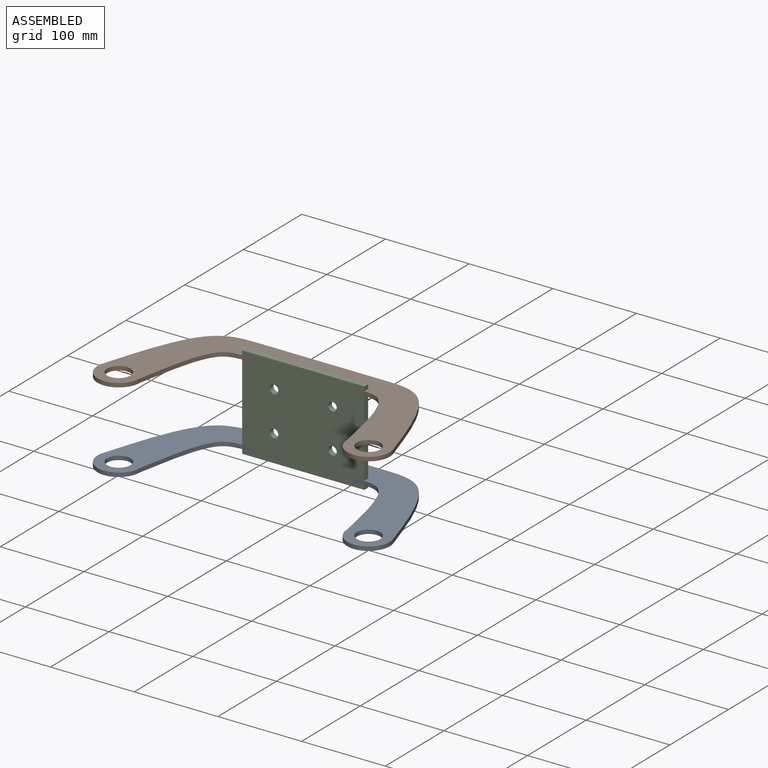
[diagram: assembled view]
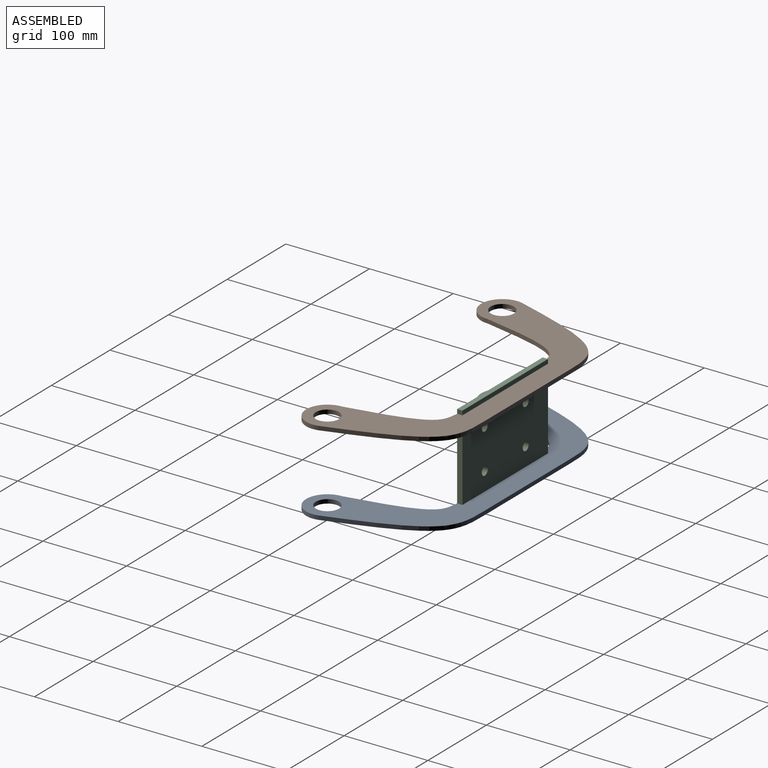
[diagram: assembled view, second angle]
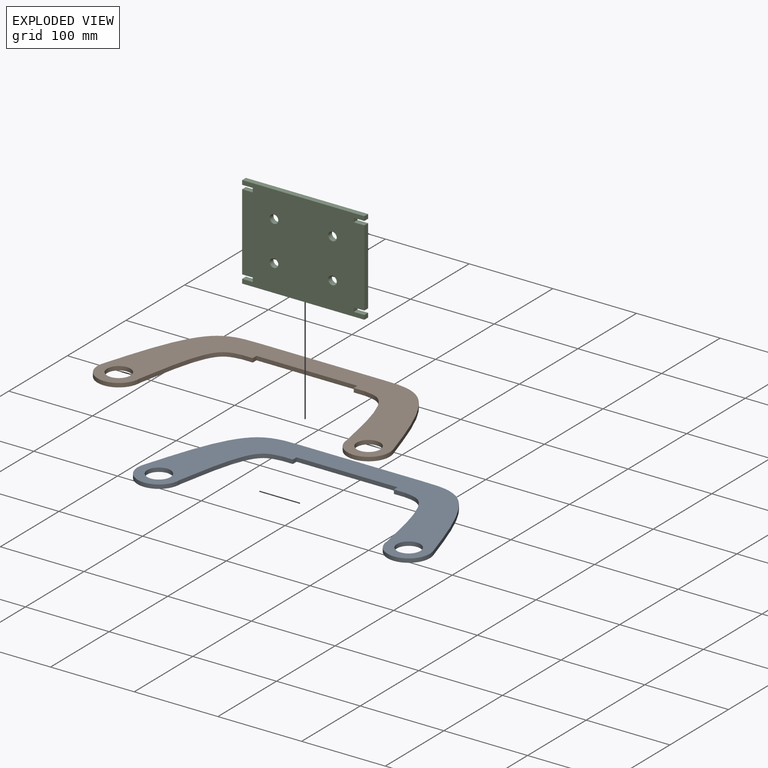
[diagram: exploded view]
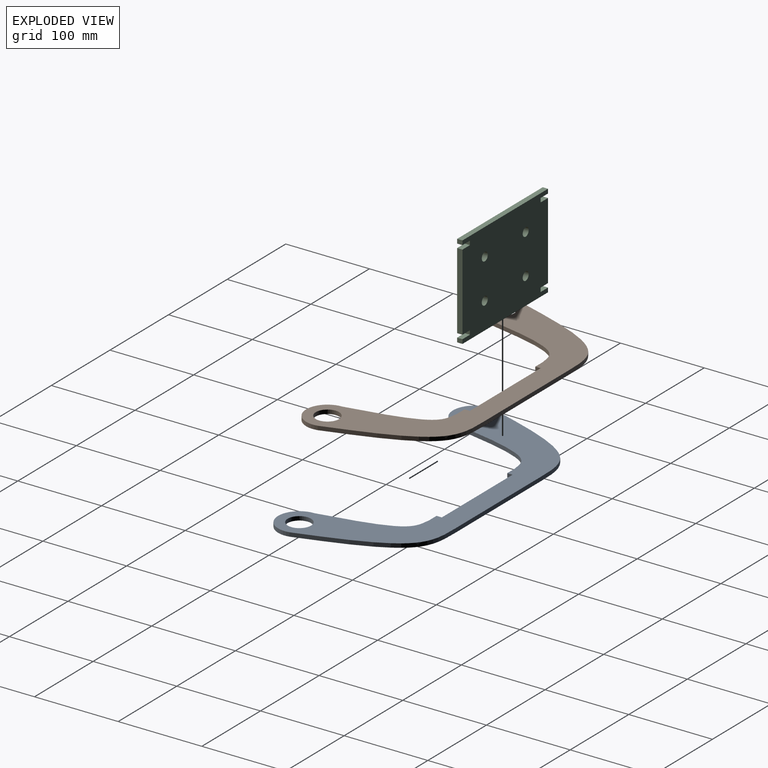
[diagram: exploded view, second angle]
ASSEMBLY  parts=3 mates=2
PART A: 16 faces, bbox 349.3x159.1x4.8 mm
  f0: cylinder r=25.4mm len=50.8mm, axis (0,0,-1), area 424.6mm2, adj f1,f11,f14,f15
  f1: extruded ~101.6x50.8mm, area 585.6mm2, adj f0,f2,f14,f15
  f2: plane 12.7x4.76mm, normal (0,-1,0), area 60.5mm2, adj f1,f3,f14,f15
  f3: plane 6.35x4.76mm, normal (1,0,0), area 30.2mm2, adj f2,f4,f14,f15
  f4: plane 120.65x4.76mm, normal (0,-1,0), area 574.6mm2, adj f3,f5,f14,f15
  f5: plane 6.35x4.76mm, normal (-1,0,0), area 30.2mm2, adj f4,f6,f14,f15
  f6: plane 12.7x4.76mm, normal (0,-1,0), area 60.5mm2, adj f5,f7,f14,f15
  f7: extruded ~101.6x50.8mm, area 585.6mm2, adj f6,f8,f14,f15
  f8: cylinder r=25.4mm len=50.8mm, axis (0,0,-1), area 424.6mm2, adj f7,f9,f14,f15
  f9: extruded ~124.23x99.9mm, area 839.3mm2, adj f8,f10,f14,f15
  f10: plane 146.05x4.76mm, normal (0,1,0), area 695.6mm2, adj f9,f11,f14,f15
  f11: extruded ~124.23x99.9mm, area 839.3mm2, adj f0,f10,f14,f15
  f12: cylinder r=13.97mm len=27.94mm, axis (0,0,-1), area 418mm2, adj f14,f15
  f13: cylinder r=13.97mm len=27.94mm, axis (0,0,-1), area 418mm2, adj f14,f15
  f14: plane 349.25x159.13mm, normal (0,0,1), area 17536.1mm2, adj f0,f1,f2,f3,f4,f5,f6,f7
  f15: plane 349.25x159.13mm, normal (0,0,-1), area 17536.1mm2, adj f0,f1,f2,f3,f4,f5,f6,f7
PART B: same geometry as A
PART C: 26 faces, bbox 111.8x146.1x6.4 mm
  f0: plane 12.7x6.35mm, normal (1,0,0), area 80.6mm2, adj f1,f23,f24,f25
  f1: plane 91.95x6.35mm, normal (0,1,0), area 583.9mm2, adj f0,f2,f24,f25
  f2: plane 12.7x6.35mm, normal (-1,0,0), area 80.6mm2, adj f1,f3,f24,f25
  f3: plane 6.35x4.83mm, normal (0,1,0), area 30.6mm2, adj f2,f4,f24,f25
  f4: plane 12.7x6.35mm, normal (1,0,0), area 80.6mm2, adj f3,f5,f24,f25
  f5: plane 6.35x5.08mm, normal (0,1,0), area 32.3mm2, adj f4,f6,f24,f25
  f6: plane 146.05x6.35mm, normal (-1,0,0), area 927.4mm2, adj f5,f7,f24,f25
  f7: plane 6.35x5.08mm, normal (0,-1,0), area 32.3mm2, adj f6,f8,f24,f25
  f8: plane 12.7x6.35mm, normal (1,0,0), area 80.6mm2, adj f7,f9,f24,f25
  f9: plane 6.35x4.83mm, normal (0,-1,0), area 30.6mm2, adj f8,f10,f24,f25
  f10: plane 12.7x6.35mm, normal (-1,0,0), area 80.6mm2, adj f9,f11,f24,f25
  f11: plane 91.95x6.35mm, normal (0,-1,0), area 583.9mm2, adj f10,f12,f24,f25
  f12: plane 12.7x6.35mm, normal (1,0,0), area 80.6mm2, adj f11,f13,f24,f25
  f13: plane 6.35x4.83mm, normal (0,-1,0), area 30.6mm2, adj f12,f14,f24,f25
  f14: plane 12.7x6.35mm, normal (-1,0,0), area 80.6mm2, adj f13,f15,f24,f25
  f15: plane 6.35x5.08mm, normal (0,-1,0), area 32.3mm2, adj f14,f16,f24,f25
  f16: plane 146.05x6.35mm, normal (1,0,0), area 927.4mm2, adj f15,f17,f24,f25
  f17: plane 6.35x5.08mm, normal (0,1,0), area 32.3mm2, adj f16,f18,f24,f25
  f18: plane 12.7x6.35mm, normal (-1,0,0), area 80.6mm2, adj f17,f23,f24,f25
  f19: cylinder r=5.08mm len=10.16mm, axis (0,0,-1), area 202.7mm2, adj f24,f25
  f20: cylinder r=5.08mm len=10.16mm, axis (0,0,-1), area 202.7mm2, adj f24,f25
  f21: cylinder r=5.08mm len=10.16mm, axis (0,0,-1), area 202.7mm2, adj f24,f25
  f22: cylinder r=5.08mm len=10.16mm, axis (0,0,-1), area 202.7mm2, adj f24,f25
  f23: plane 6.35x4.83mm, normal (0,1,0), area 30.6mm2, adj f0,f18,f24,f25
  f24: plane 146.05x111.76mm, normal (0,0,1), area 15753.1mm2, adj f0,f1,f2,f3,f4,f5,f6,f7
  f25: plane 146.05x111.76mm, normal (0,0,-1), area 15753.1mm2, adj f0,f1,f2,f3,f4,f5,f6,f7
PLACE A at identity
PLACE B t=(0,0,96.77)mm
PLACE C rot(axis=(-0.58,-0.58,-0.58),120deg) t=(-257.36,101.6,-196.83)mm
MATE fastened C.f13 <-> B.f3  axis (-1,0,0) through (-209.55,104.78,99.16)mm
MATE fastened C.f9 <-> A.f3  axis (-1,0,0) through (-209.55,104.78,2.38)mm
